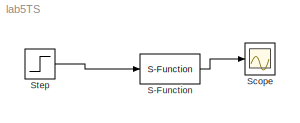
MODEL lab5TS
KIND model
BLOCK [S-Function] S-Function
  Ports = [1, 1]
BLOCK [Scope] Scope
  DataFormat = StructureWithTime
  NumInputPorts = 1
  Ports = [1]
BLOCK [Step] Step
  SampleTime = 0
LINE S-Function:1 -> Scope:1
LINE Step:1 -> S-Function:1
